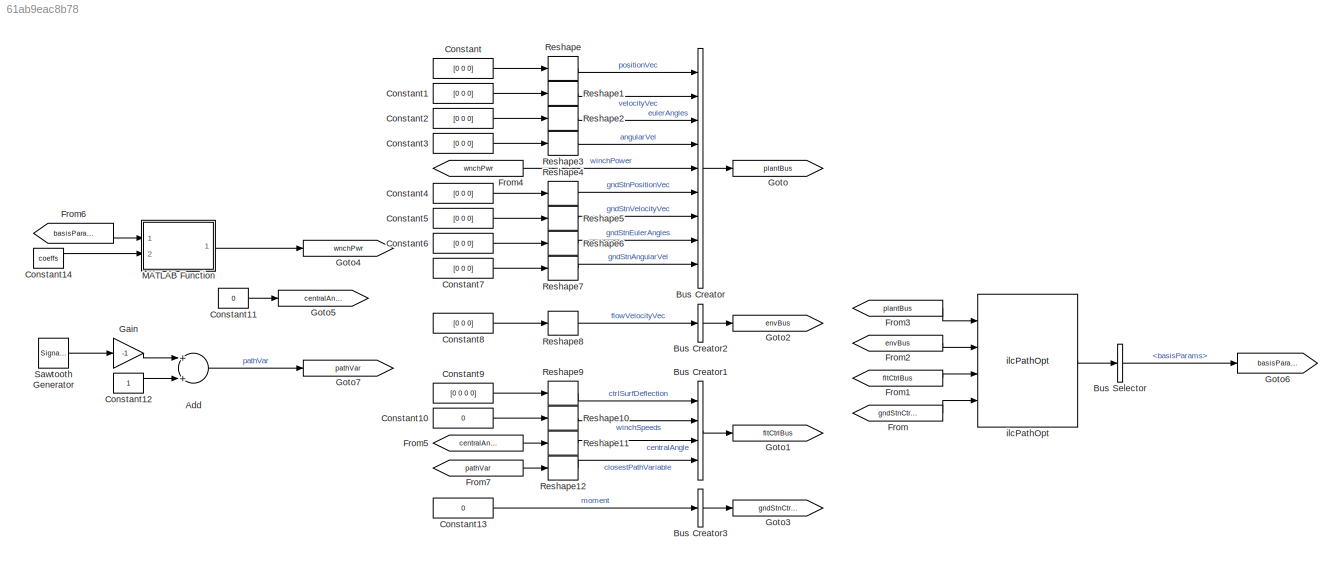
MODEL slx_61ab9eac8b78
KIND model
CONFIG AbsTol = auto
CONFIG EnableMultiTasking = off
CONFIG FixedStep = 0.001
CONFIG MaxStep = auto
CONFIG MinStep = auto
CONFIG RelTol = 1e-3
CONFIG SampleTimeConstraint = Unconstrained
CONFIG Solver = FixedStepAuto
CONFIG SolverName = FixedStepAuto
CONFIG StartTime = 0.0
CONFIG StopTime = duration_s
BLOCK [Sum] Add
  InputSameDT = off
  OutDataTypeStr = Inherit: Inherit via internal rule
  Ports = [2, 1]
  SaturateOnIntegerOverflow = off
BLOCK [BusCreator] Bus Creator
  DisplayOption = bar
  InheritFromInputs = on
  Inputs = 9
  OutDataTypeStr = Bus: plantBus
  Ports = [9, 1]
BLOCK [BusCreator] Bus Creator1
  DisplayOption = bar
  InheritFromInputs = on
  Inputs = 4
  OutDataTypeStr = Bus: fltCtrlBus
  Ports = [4, 1]
BLOCK [BusCreator] Bus Creator2
  DisplayOption = bar
  InheritFromInputs = on
  Inputs = 1
  OutDataTypeStr = Bus: envBus
  Ports = [1, 1]
BLOCK [BusCreator] Bus Creator3
  DisplayOption = bar
  InheritFromInputs = on
  Inputs = 1
  OutDataTypeStr = Bus: gndStnCtrlBus
  Ports = [1, 1]
BLOCK [BusSelector] Bus Selector
  OutputAsBus = off
  OutputSignals = basisParams
  Ports = [1, 1]
BLOCK [Constant] Constant
  Value = [0 0 0]
BLOCK [Constant] Constant1
  Value = [0 0 0]
BLOCK [Constant] Constant10
  Value = 0
BLOCK [Constant] Constant11
  Value = 0
BLOCK [Constant] Constant12
BLOCK [Constant] Constant13
  Value = 0
BLOCK [Constant] Constant14
  Value = coeffs
BLOCK [Constant] Constant2
  Value = [0 0 0]
BLOCK [Constant] Constant3
  Value = [0 0 0]
BLOCK [Constant] Constant4
  Value = [0 0 0]
BLOCK [Constant] Constant5
  Value = [0 0 0]
BLOCK [Constant] Constant6
  Value = [0 0 0]
BLOCK [Constant] Constant7
  Value = [0 0 0]
BLOCK [Constant] Constant8
  Value = [0 0 0]
BLOCK [Constant] Constant9
  Value = [0 0 0 0]
BLOCK [From] From
  GotoTag = gndStnCtrlBus
BLOCK [From] From1
  GotoTag = fltCtrlBus
BLOCK [From] From2
  GotoTag = envBus
BLOCK [From] From3
  GotoTag = plantBus
BLOCK [From] From4
  GotoTag = wnchPwr
BLOCK [From] From5
  GotoTag = centralAngle
BLOCK [From] From6
  GotoTag = basisParams
BLOCK [From] From7
  GotoTag = pathVar
BLOCK [Gain] Gain
  Gain = -1
  OutDataTypeStr = Inherit: Inherit via internal rule
  ParamDataTypeStr = Inherit: Inherit via internal rule
  SaturateOnIntegerOverflow = off
BLOCK [Goto] Goto
  GotoTag = plantBus
BLOCK [Goto] Goto1
  GotoTag = fltCtrlBus
BLOCK [Goto] Goto2
  GotoTag = envBus
BLOCK [Goto] Goto3
  GotoTag = gndStnCtrlBus
BLOCK [Goto] Goto4
  GotoTag = wnchPwr
BLOCK [Goto] Goto5
  GotoTag = centralAngle
BLOCK [Goto] Goto6
  GotoTag = basisParams
BLOCK [Goto] Goto7
  GotoTag = pathVar
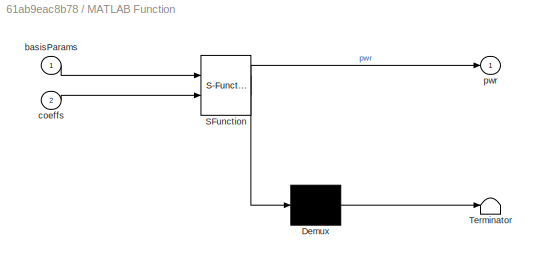
BLOCK [SubSystem] MATLAB Function
  ErrorFcn = Stateflow.Translate.translate
  PermitHierarchicalResolution = ExplicitOnly
  Ports = [2, 1]
  RequestExecContextInheritance = off
  SFBlockType = MATLAB Function
  TreatAsAtomicUnit = on
BLOCK [Demux] MATLAB Function/ Demux 
  Outputs = 1
  Ports = [1, 1]
BLOCK [S-Function] MATLAB Function/ SFunction 
  EnableBusSupport = on
  FunctionName = sf_sfun
  PortCounts = [2 2]
  Ports = [2, 2]
  SFcnIsStateOwnerBlock = off
  SFunctionDeploymentMode = off
  Tag = Stateflow S-Function ilcPathOpt_th 2
BLOCK [Terminator] MATLAB Function/ Terminator 
BLOCK [Inport] MATLAB Function/basisParams
  IconDisplay = Port number
BLOCK [Inport] MATLAB Function/coeffs
  IconDisplay = Port number
  Port = 2
BLOCK [Outport] MATLAB Function/pwr
  IconDisplay = Port number
BLOCK [Reshape] Reshape
  OutputDimensionality = Column vector (2-D)
  Ports = [1, 1]
BLOCK [Reshape] Reshape1
  OutputDimensionality = Column vector (2-D)
  Ports = [1, 1]
BLOCK [Reshape] Reshape10
  OutputDimensionality = Column vector (2-D)
  Ports = [1, 1]
BLOCK [Reshape] Reshape11
  OutputDimensionality = Column vector (2-D)
  Ports = [1, 1]
BLOCK [Reshape] Reshape12
  OutputDimensionality = Column vector (2-D)
  Ports = [1, 1]
BLOCK [Reshape] Reshape2
  OutputDimensionality = Column vector (2-D)
  Ports = [1, 1]
BLOCK [Reshape] Reshape3
  OutputDimensionality = Column vector (2-D)
  Ports = [1, 1]
BLOCK [Reshape] Reshape4
  OutputDimensionality = Column vector (2-D)
  Ports = [1, 1]
BLOCK [Reshape] Reshape5
  OutputDimensionality = Column vector (2-D)
  Ports = [1, 1]
BLOCK [Reshape] Reshape6
  OutputDimensionality = Column vector (2-D)
  Ports = [1, 1]
BLOCK [Reshape] Reshape7
  OutputDimensionality = Column vector (2-D)
  Ports = [1, 1]
BLOCK [Reshape] Reshape8
  OutputDimensionality = Column vector (2-D)
  Ports = [1, 1]
BLOCK [Reshape] Reshape9
  OutputDimensionality = Column vector (2-D)
  Ports = [1, 1]
BLOCK [SignalGenerator] Sawtooth Generator
  Ports = [0, 1]
  WaveForm = sawtooth
BLOCK [Reference] ilcPathOpt  REF=ilcPathOpt_cl/ilcPathOpt
  Ports = [4, 1]
  SourceBlock = ilcPathOpt_cl/ilcPathOpt
LINE Add:1 -> Goto7:1
LINE Bus Creator1:1 -> Goto1:1
LINE Bus Creator2:1 -> Goto2:1
LINE Bus Creator3:1 -> Goto3:1
LINE Bus Creator:1 -> Goto:1
LINE Bus Selector:1 -> Goto6:1
LINE Constant10:1 -> Reshape10:1
LINE Constant11:1 -> Goto5:1
LINE Constant12:1 -> Add:2
LINE Constant13:1 -> Bus Creator3:1
LINE Constant14:1 -> MATLAB Function:2
LINE Constant1:1 -> Reshape1:1
LINE Constant2:1 -> Reshape2:1
LINE Constant3:1 -> Reshape3:1
LINE Constant4:1 -> Reshape4:1
LINE Constant5:1 -> Reshape5:1
LINE Constant6:1 -> Reshape6:1
LINE Constant7:1 -> Reshape7:1
LINE Constant8:1 -> Reshape8:1
LINE Constant9:1 -> Reshape9:1
LINE Constant:1 -> Reshape:1
LINE From1:1 -> ilcPathOpt:3
LINE From2:1 -> ilcPathOpt:2
LINE From3:1 -> ilcPathOpt:1
LINE From4:1 -> Bus Creator:5
LINE From5:1 -> Reshape11:1
LINE From6:1 -> MATLAB Function:1
LINE From7:1 -> Reshape12:1
LINE From:1 -> ilcPathOpt:4
LINE Gain:1 -> Add:1
LINE MATLAB Function:1 -> Goto4:1
LINE Reshape10:1 -> Bus Creator1:2
LINE Reshape11:1 -> Bus Creator1:3
LINE Reshape12:1 -> Bus Creator1:4
LINE Reshape1:1 -> Bus Creator:2
LINE Reshape2:1 -> Bus Creator:3
LINE Reshape3:1 -> Bus Creator:4
LINE Reshape4:1 -> Bus Creator:6
LINE Reshape5:1 -> Bus Creator:7
LINE Reshape6:1 -> Bus Creator:8
LINE Reshape7:1 -> Bus Creator:9
LINE Reshape8:1 -> Bus Creator2:1
LINE Reshape9:1 -> Bus Creator1:1
LINE Reshape:1 -> Bus Creator:1
LINE Sawtooth Generator:1 -> Gain:1
LINE ilcPathOpt:1 -> Bus Selector:1
CHART MATLAB Function states=1 transitions=1
  STATE_LABEL 'eML_blk_kernel()'
  STATE_LABEL 'SCRIPT:\nfunction pwr = fcn(basisParams,coeffs)\n\npwr = coeffs(1)+...\n    coeffs(2)*basisParams(1)+...\n    coeffs(3)*basisParams(1).^2+...\n    coeffs(4)*basisParams(2)+...\n    coeffs(5)*basisParams(2).^2;\n'
